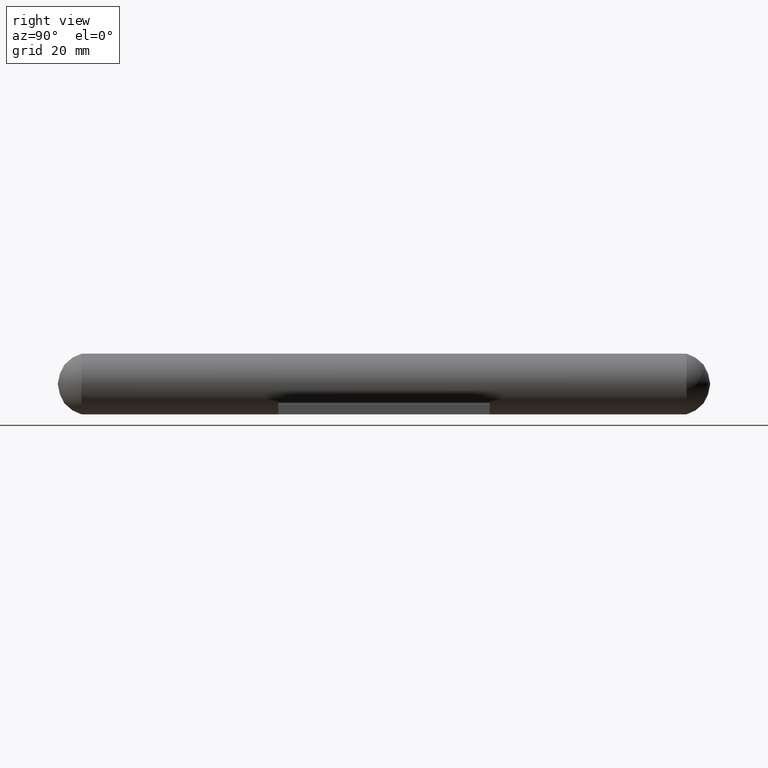
[diagram: clean part render]
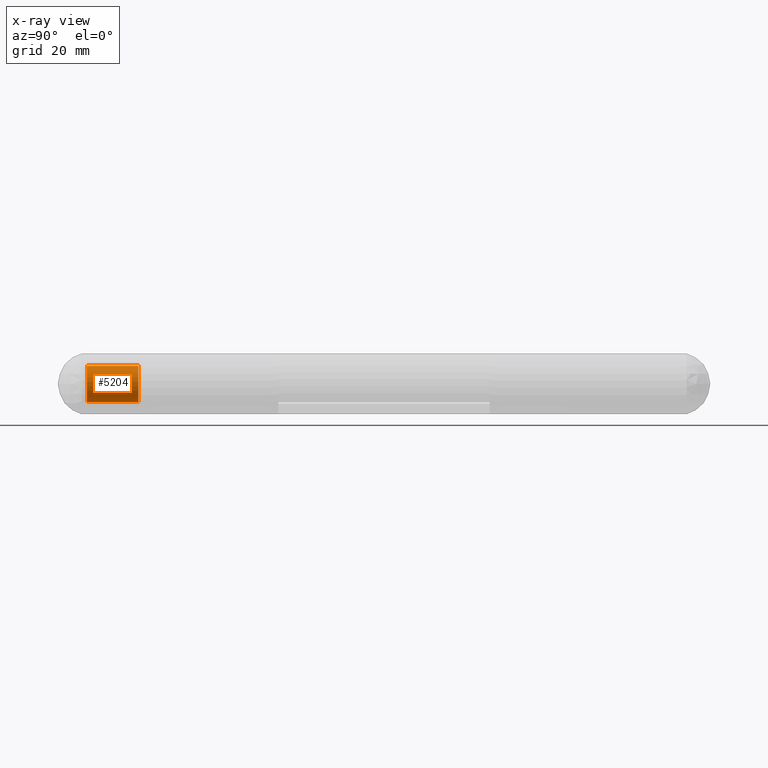
[diagram: x-ray — body ghosted, one internal face saturated and labeled with its STEP entity id]
A machine part, right view, then the same camera in x-ray: the body is ghosted and one INTERNAL B-rep face — a face not visible from any outside direction — is saturated and labeled: STEP entity #5204.
In plain terms, the highlighted cylindrical surface (bore or boss wall) has radius 6.875 mm, axis along (0, 1, -0).
Its self-contained STEP definition (entity closure, byte-faithful):
#58 = CARTESIAN_POINT ( 'NONE',  ( 0.000000000000000000, -15.50000000000000000, 0.000000000000000000 ) ) ;
#807 = EDGE_CURVE ( 'NONE', #6192, #6192, #7347, .T. ) ;
#1370 = DIRECTION ( 'NONE',  ( -0.000000000000000000, -1.000000000000000000, -0.000000000000000000 ) ) ;
#3122 = DIRECTION ( 'NONE',  ( 0.000000000000000000, 0.000000000000000000, -1.000000000000000000 ) ) ;
#3167 = FACE_OUTER_BOUND ( 'NONE', #12303, .T. ) ;
#3312 = CARTESIAN_POINT ( 'NONE',  ( 0.000000000000000000, 4.500000000000000888, 0.000000000000000000 ) ) ;
#3635 = ORIENTED_EDGE ( 'NONE', *, *, #5754, .T. ) ;
#3868 = CARTESIAN_POINT ( 'NONE',  ( 0.000000000000000000, 4.500000000000000888, -6.875000000000000000 ) ) ;
#4020 = VERTEX_POINT ( 'NONE', #3868 ) ;
#4062 = DIRECTION ( 'NONE',  ( -0.000000000000000000, -1.000000000000000000, -0.000000000000000000 ) ) ;
#4465 = DIRECTION ( 'NONE',  ( 0.000000000000000000, 0.000000000000000000, -1.000000000000000000 ) ) ;
#5204 = ADVANCED_FACE ( 'NONE', ( #3167, #5528 ), #7212, .T. ) ;
#5528 = FACE_OUTER_BOUND ( 'NONE', #12094, .T. ) ;
#5630 = CARTESIAN_POINT ( 'NONE',  ( 0.000000000000000000, -15.00000000000000178, -6.875000000000000888 ) ) ;
#5754 = EDGE_CURVE ( 'NONE', #4020, #4020, #12326, .T. ) ;
#6192 = VERTEX_POINT ( 'NONE', #5630 ) ;
#7016 = AXIS2_PLACEMENT_3D ( 'NONE', #11964, #7091, #3122 ) ;
#7091 = DIRECTION ( 'NONE',  ( 0.000000000000000000, 1.000000000000000000, 0.000000000000000000 ) ) ;
#7212 = CYLINDRICAL_SURFACE ( 'NONE', #12461, 6.875000000000000888 ) ;
#7347 = CIRCLE ( 'NONE', #7016, 6.875000000000000888 ) ;
#8071 = DIRECTION ( 'NONE',  ( 0.000000000000000000, 0.000000000000000000, -1.000000000000000000 ) ) ;
#9322 = ORIENTED_EDGE ( 'NONE', *, *, #807, .T. ) ;
#11784 = AXIS2_PLACEMENT_3D ( 'NONE', #3312, #1370, #4465 ) ;
#11964 = CARTESIAN_POINT ( 'NONE',  ( 0.000000000000000000, -15.00000000000000178, 0.000000000000000000 ) ) ;
#12094 = EDGE_LOOP ( 'NONE', ( #3635 ) ) ;
#12303 = EDGE_LOOP ( 'NONE', ( #9322 ) ) ;
#12326 = CIRCLE ( 'NONE', #11784, 6.875000000000000000 ) ;
#12461 = AXIS2_PLACEMENT_3D ( 'NONE', #58, #4062, #8071 ) ;